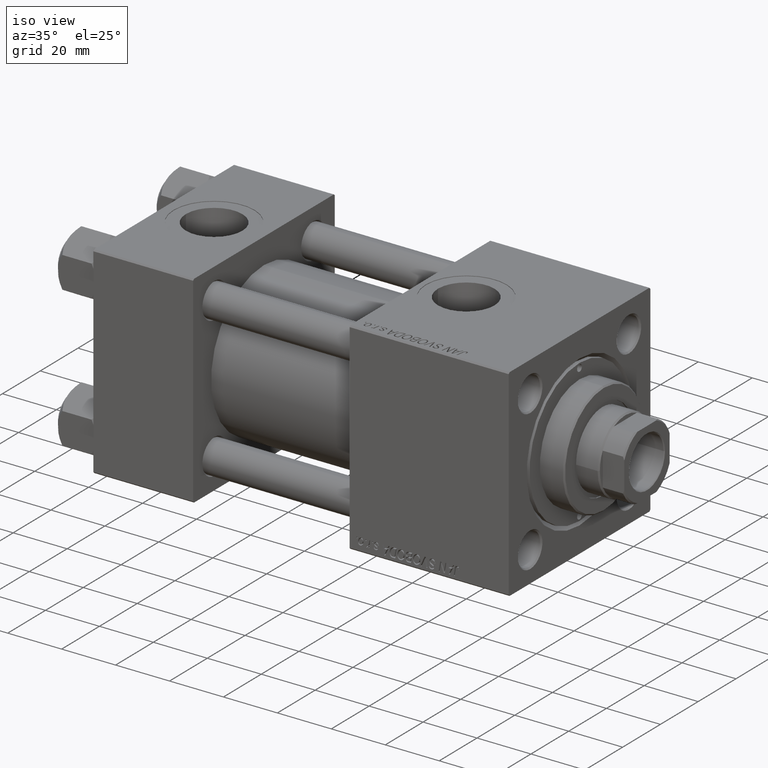
[diagram: clean part render]
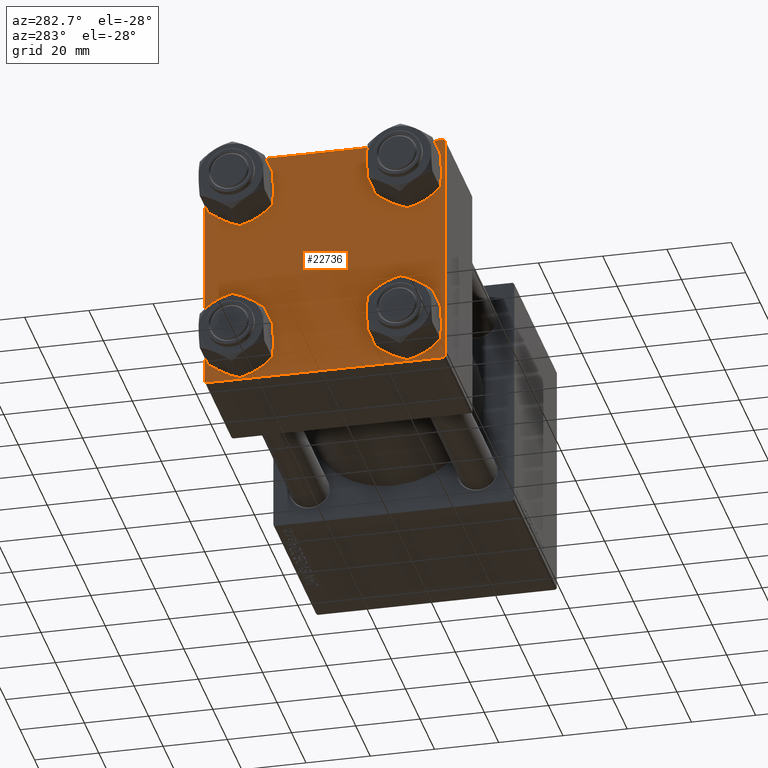
[diagram: tour spotlight — one face highlighted and labeled with its STEP entity id]
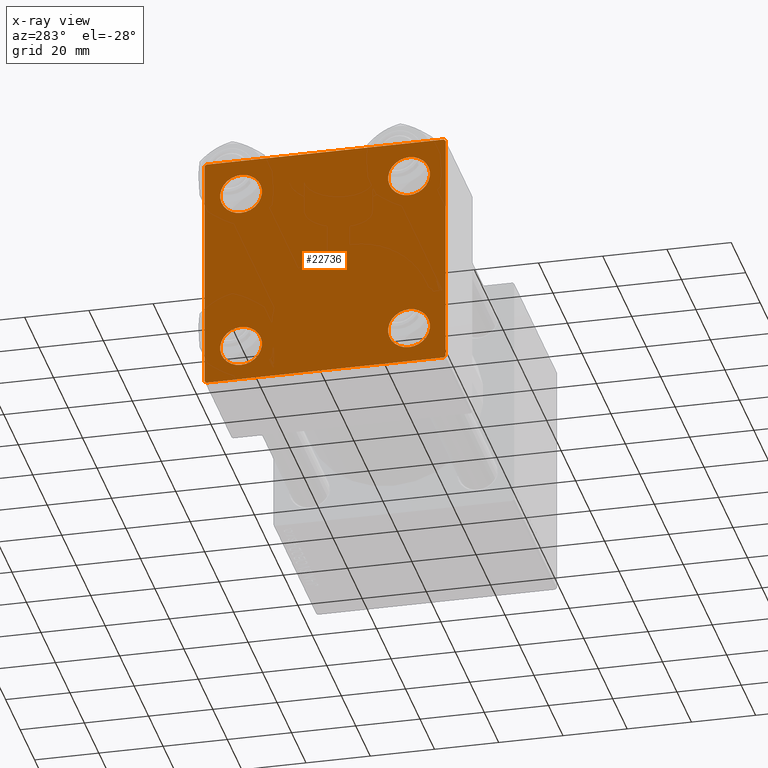
[diagram: x-ray of the same camera — body ghosted, this tour face saturated]
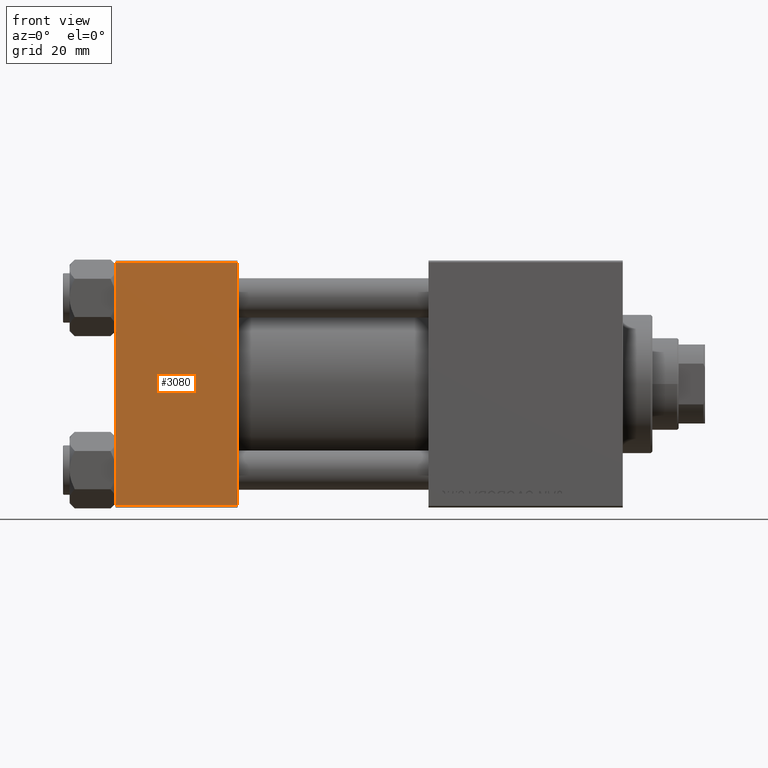
[diagram: tour spotlight — one face highlighted and labeled with its STEP entity id]
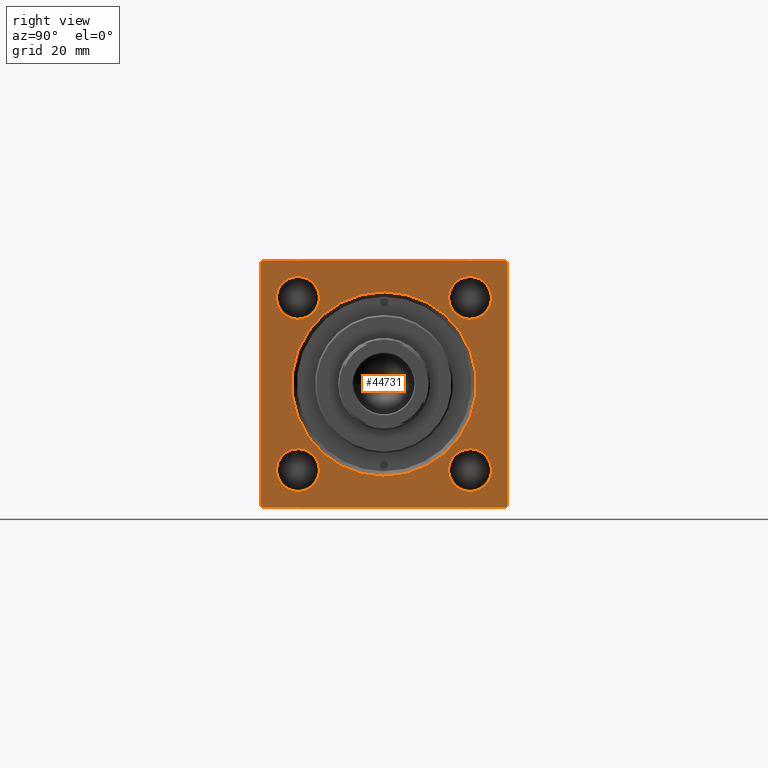
[diagram: tour spotlight — one face highlighted and labeled with its STEP entity id]
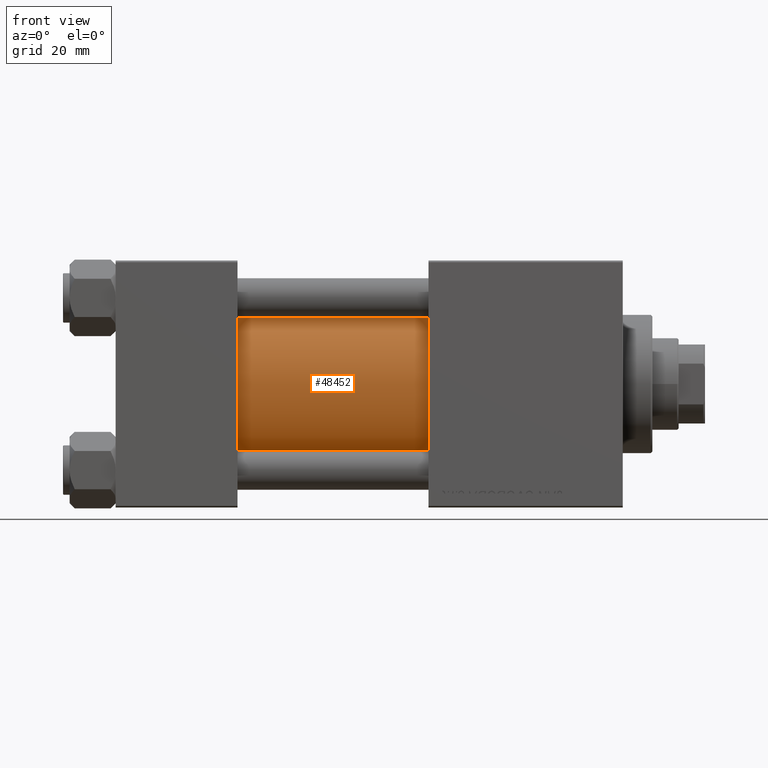
[diagram: tour spotlight — one face highlighted and labeled with its STEP entity id]
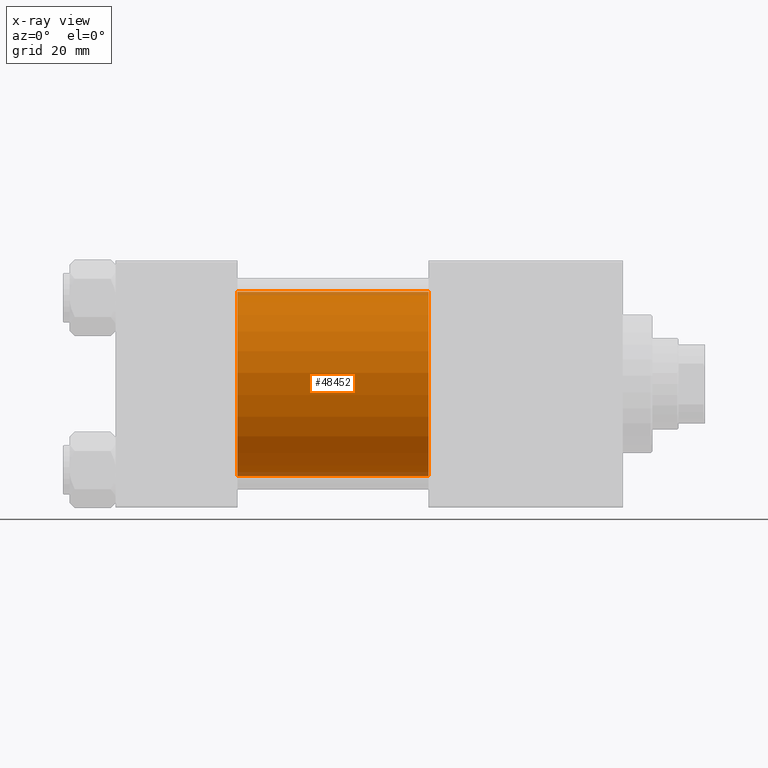
[diagram: x-ray of the same camera — body ghosted, this tour face saturated]
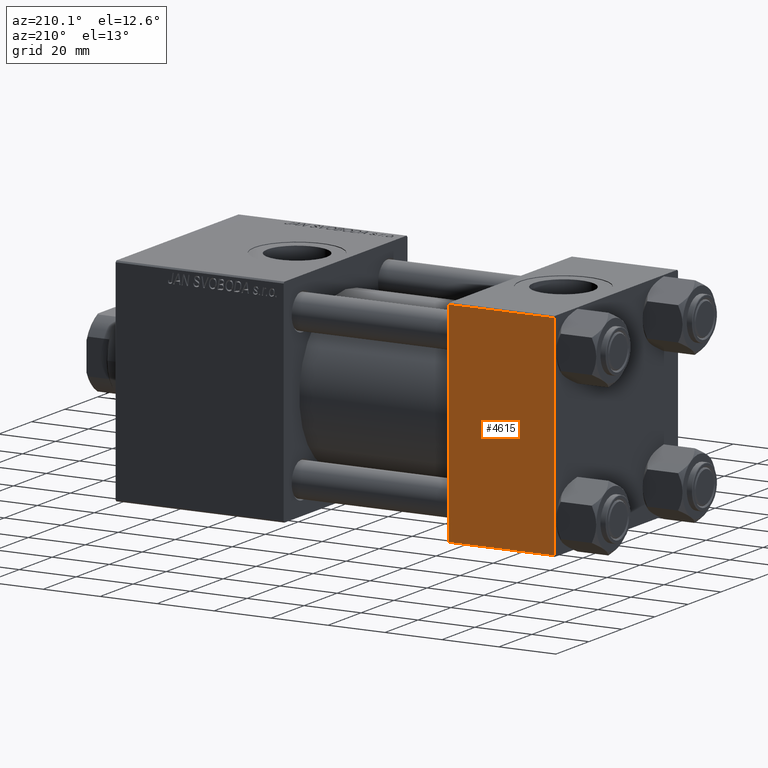
[diagram: tour spotlight — one face highlighted and labeled with its STEP entity id]
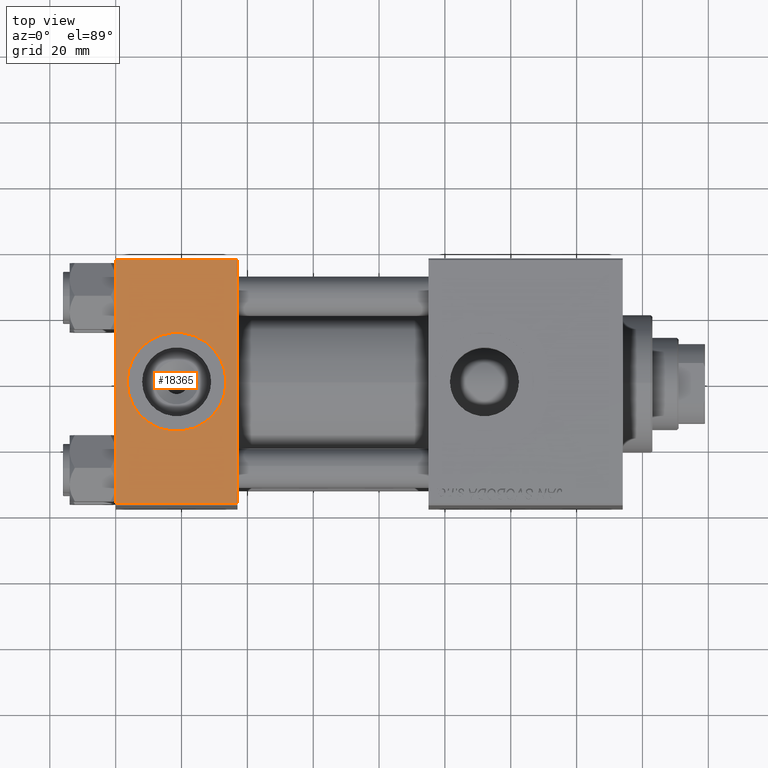
[diagram: tour spotlight — one face highlighted and labeled with its STEP entity id]
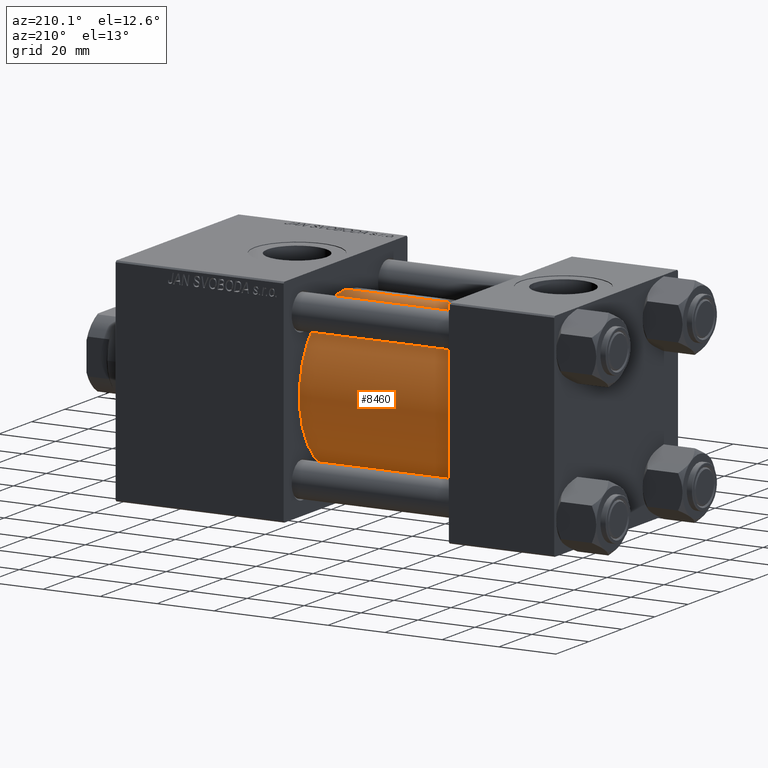
[diagram: tour spotlight — one face highlighted and labeled with its STEP entity id]
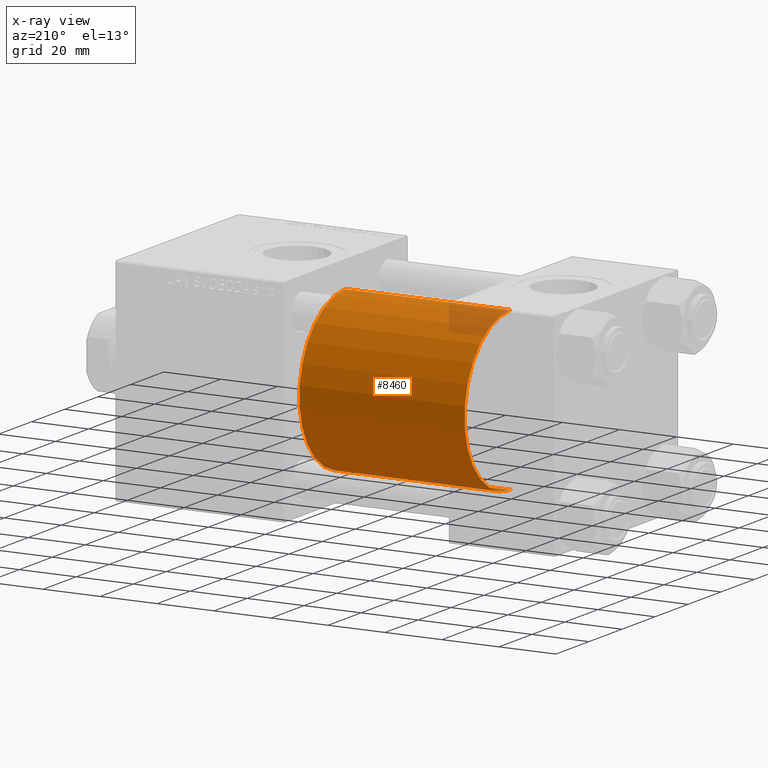
[diagram: x-ray of the same camera — body ghosted, this tour face saturated]
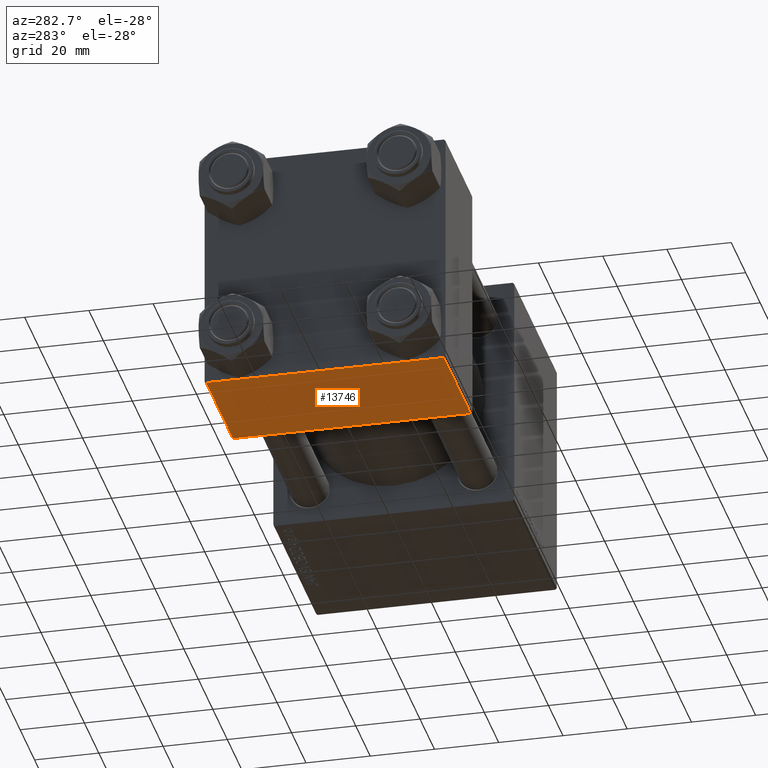
[diagram: tour spotlight — one face highlighted and labeled with its STEP entity id]
A machine part: a face-by-face anatomy tour. The part has 1154 B-rep faces; the first image is the clean iso view, then the 8 largest visible faces are spotlighted one at a time (largest first), each with its STEP entity span.

Face 1 — auxiliary view, entity #22736. An x-ray twin of the same camera follows (body ghosted, this face saturated) — the face is partly hidden behind the body. In plain terms, the highlighted planar face has unit normal (-1, 0, 0).
Definition (entity closure, byte-faithful):
#108 = VERTEX_POINT ( 'NONE', #187 ) ;
#187 = CARTESIAN_POINT ( 'NONE',  ( 0.000000000000000000, -37.00000000000000711, 37.49999999999999289 ) ) ;
#282 = CARTESIAN_POINT ( 'NONE',  ( 0.000000000000000000, 37.49999999999999289, 37.50000000000000000 ) ) ;
#373 = ORIENTED_EDGE ( 'NONE', *, *, #13104, .T. ) ;
#453 = VERTEX_POINT ( 'NONE', #30478 ) ;
#852 = CARTESIAN_POINT ( 'NONE',  ( 0.000000000000000000, 36.99999999999999289, 37.50000000000000000 ) ) ;
#1145 = EDGE_CURVE ( 'NONE', #4337, #30377, #42546, .T. ) ;
#1372 = CARTESIAN_POINT ( 'NONE',  ( 0.000000000000000000, 26.14999999999999858, 32.65000000000002700 ) ) ;
#1682 = ORIENTED_EDGE ( 'NONE', *, *, #7544, .T. ) ;
#1937 = CARTESIAN_POINT ( 'NONE',  ( -0.000000000000000000, -37.25000000000000000, 37.25000000000000000 ) ) ;
#1982 = CARTESIAN_POINT ( 'NONE',  ( 0.000000000000000000, 37.49999999999999289, -37.50000000000000000 ) ) ;
#3220 = VERTEX_POINT ( 'NONE', #21809 ) ;
#3359 = CARTESIAN_POINT ( 'NONE',  ( 0.000000000000000000, 37.49999999999999289, -36.99999999999998579 ) ) ;
#3478 = CIRCLE ( 'NONE', #39244, 6.500000000000023093 ) ;
#3584 = FACE_BOUND ( 'NONE', #45500, .T. ) ;
#3882 = EDGE_CURVE ( 'NONE', #21961, #43569, #17248, .T. ) ;
#4337 = VERTEX_POINT ( 'NONE', #23929 ) ;
#4839 = DIRECTION ( 'NONE',  ( 0.000000000000000000, 9.251858538542971581E-17, -1.000000000000000000 ) ) ;
#4964 = AXIS2_PLACEMENT_3D ( 'NONE', #30027, #18820, #22885 ) ;
#5441 = DIRECTION ( 'NONE',  ( 0.000000000000000000, -1.000000000000000000, -9.251858538542971581E-17 ) ) ;
#5763 = LINE ( 'NONE', #1937, #32898 ) ;
#5916 = AXIS2_PLACEMENT_3D ( 'NONE', #27687, #19302, #11648 ) ;
#6670 = AXIS2_PLACEMENT_3D ( 'NONE', #12268, #7705, #42590 ) ;
#7544 = EDGE_CURVE ( 'NONE', #4337, #108, #5763, .T. ) ;
#7705 = DIRECTION ( 'NONE',  ( 1.000000000000000000, -0.000000000000000000, 0.000000000000000000 ) ) ;
#7938 = ORIENTED_EDGE ( 'NONE', *, *, #10019, .T. ) ;
#7977 = CARTESIAN_POINT ( 'NONE',  ( 0.000000000000000000, -37.50000000000000000, -37.00000000000003553 ) ) ;
#8557 = DIRECTION ( 'NONE',  ( 1.000000000000000000, -0.000000000000000000, 0.000000000000000000 ) ) ;
#8770 = CARTESIAN_POINT ( 'NONE',  ( 0.000000000000000000, 26.14999999999999858, -26.15000000000000213 ) ) ;
#9043 = EDGE_CURVE ( 'NONE', #25455, #3220, #36871, .T. ) ;
#9081 = CARTESIAN_POINT ( 'NONE',  ( 0.000000000000000000, 37.24999999999999289, 37.24999999999999289 ) ) ;
#9435 = LINE ( 'NONE', #47855, #41634 ) ;
#10019 = EDGE_CURVE ( 'NONE', #453, #24376, #11372, .T. ) ;
#10395 = DIRECTION ( 'NONE',  ( 1.000000000000000000, -0.000000000000000000, 0.000000000000000000 ) ) ;
#10710 = CARTESIAN_POINT ( 'NONE',  ( 0.000000000000000000, -26.14999999999999147, 32.65000000000003411 ) ) ;
#10988 = PLANE ( 'NONE',  #44996 ) ;
#11372 = CIRCLE ( 'NONE', #12171, 6.500000000000023093 ) ;
#11648 = DIRECTION ( 'NONE',  ( 0.000000000000000000, 0.000000000000000000, 1.000000000000000000 ) ) ;
#12134 = DIRECTION ( 'NONE',  ( 0.000000000000000000, 0.000000000000000000, 1.000000000000000000 ) ) ;
#12171 = AXIS2_PLACEMENT_3D ( 'NONE', #36624, #10395, #21860 ) ;
#12268 = CARTESIAN_POINT ( 'NONE',  ( 0.000000000000000000, 26.14999999999999858, -26.15000000000000213 ) ) ;
#12629 = CARTESIAN_POINT ( 'NONE',  ( 0.000000000000000000, -26.14999999999999147, -26.15000000000000924 ) ) ;
#12696 = ORIENTED_EDGE ( 'NONE', *, *, #19340, .T. ) ;
#12842 = DIRECTION ( 'NONE',  ( 0.000000000000000000, 0.000000000000000000, 1.000000000000000000 ) ) ;
#13000 = DIRECTION ( 'NONE',  ( 0.000000000000000000, 0.000000000000000000, -1.000000000000000000 ) ) ;
#13104 = EDGE_CURVE ( 'NONE', #38133, #45361, #43962, .T. ) ;
#13563 = VECTOR ( 'NONE', #5441, 1000.000000000000000 ) ;
#13569 = DIRECTION ( 'NONE',  ( 1.000000000000000000, -0.000000000000000000, 0.000000000000000000 ) ) ;
#13580 = EDGE_CURVE ( 'NONE', #17071, #16070, #49685, .T. ) ;
#13696 = DIRECTION ( 'NONE',  ( 0.000000000000000000, -1.000000000000000000, -9.251858538542972814E-17 ) ) ;
#14009 = CIRCLE ( 'NONE', #49758, 6.500000000000015987 ) ;
#14038 = EDGE_CURVE ( 'NONE', #3220, #30377, #18127, .T. ) ;
#14819 = CIRCLE ( 'NONE', #16454, 6.500000000000015987 ) ;
#15705 = EDGE_CURVE ( 'NONE', #34732, #25455, #9435, .T. ) ;
#16070 = VERTEX_POINT ( 'NONE', #38310 ) ;
#16183 = EDGE_CURVE ( 'NONE', #28997, #26846, #3478, .T. ) ;
#16454 = AXIS2_PLACEMENT_3D ( 'NONE', #8770, #48457, #12842 ) ;
#16633 = AXIS2_PLACEMENT_3D ( 'NONE', #38569, #33995, #23048 ) ;
#16805 = EDGE_CURVE ( 'NONE', #26846, #28997, #45735, .T. ) ;
#17071 = VERTEX_POINT ( 'NONE', #23053 ) ;
#17248 = CIRCLE ( 'NONE', #6670, 6.500000000000015987 ) ;
#17484 = ORIENTED_EDGE ( 'NONE', *, *, #14038, .T. ) ;
#17655 = DIRECTION ( 'NONE',  ( 0.000000000000000000, 0.000000000000000000, 1.000000000000000000 ) ) ;
#18127 = LINE ( 'NONE', #49159, #22892 ) ;
#18628 = FACE_BOUND ( 'NONE', #28850, .T. ) ;
#18820 = DIRECTION ( 'NONE',  ( 1.000000000000000000, -0.000000000000000000, 0.000000000000000000 ) ) ;
#19302 = DIRECTION ( 'NONE',  ( 1.000000000000000000, -0.000000000000000000, 0.000000000000000000 ) ) ;
#19340 = EDGE_CURVE ( 'NONE', #16070, #17071, #14009, .T. ) ;
#19533 = ORIENTED_EDGE ( 'NONE', *, *, #27225, .T. ) ;
#19589 = VECTOR ( 'NONE', #4839, 1000.000000000000000 ) ;
#20211 = ORIENTED_EDGE ( 'NONE', *, *, #1145, .F. ) ;
#20986 = LINE ( 'NONE', #47679, #13563 ) ;
#21088 = VECTOR ( 'NONE', #13696, 1000.000000000000000 ) ;
#21225 = CARTESIAN_POINT ( 'NONE',  ( 0.000000000000000000, 26.14999999999999858, 26.15000000000000213 ) ) ;
#21809 = CARTESIAN_POINT ( 'NONE',  ( 0.000000000000000000, -37.00000000000002132, -37.50000000000000711 ) ) ;
#21860 = DIRECTION ( 'NONE',  ( 0.000000000000000000, 0.000000000000000000, 1.000000000000000000 ) ) ;
#21961 = VERTEX_POINT ( 'NONE', #29831 ) ;
#22736 = ADVANCED_FACE ( 'NONE', ( #37713, #18628, #26772, #3584, #33900 ), #10988, .T. ) ;
#22885 = DIRECTION ( 'NONE',  ( 0.000000000000000000, 0.000000000000000000, 1.000000000000000000 ) ) ;
#22892 = VECTOR ( 'NONE', #36970, 1000.000000000000000 ) ;
#23048 = DIRECTION ( 'NONE',  ( 0.000000000000000000, 0.000000000000000000, 1.000000000000000000 ) ) ;
#23053 = CARTESIAN_POINT ( 'NONE',  ( 0.000000000000000000, -26.14999999999999147, -32.65000000000002700 ) ) ;
#23838 = ORIENTED_EDGE ( 'NONE', *, *, #15705, .T. ) ;
#23929 = CARTESIAN_POINT ( 'NONE',  ( 0.000000000000000000, -37.50000000000000711, 36.99999999999999289 ) ) ;
#24376 = VERTEX_POINT ( 'NONE', #10710 ) ;
#25213 = DIRECTION ( 'NONE',  ( -0.000000000000000000, -0.7071067811865474617, -0.7071067811865474617 ) ) ;
#25455 = VERTEX_POINT ( 'NONE', #44534 ) ;
#26392 = CIRCLE ( 'NONE', #16633, 6.500000000000023093 ) ;
#26520 = CARTESIAN_POINT ( 'NONE',  ( 0.000000000000000000, 0.000000000000000000, 0.000000000000000000 ) ) ;
#26772 = FACE_BOUND ( 'NONE', #38268, .T. ) ;
#26846 = VERTEX_POINT ( 'NONE', #47920 ) ;
#27225 = EDGE_CURVE ( 'NONE', #45361, #34732, #39748, .T. ) ;
#27285 = ORIENTED_EDGE ( 'NONE', *, *, #16183, .T. ) ;
#27687 = CARTESIAN_POINT ( 'NONE',  ( 0.000000000000000000, 26.14999999999999858, 26.15000000000000213 ) ) ;
#28850 = EDGE_LOOP ( 'NONE', ( #12696, #36112 ) ) ;
#28997 = VERTEX_POINT ( 'NONE', #1372 ) ;
#29203 = DIRECTION ( 'NONE',  ( 0.000000000000000000, 0.7071067811865474617, -0.7071067811865474617 ) ) ;
#29831 = CARTESIAN_POINT ( 'NONE',  ( 0.000000000000000000, 26.14999999999999858, -19.64999999999998792 ) ) ;
#30027 = CARTESIAN_POINT ( 'NONE',  ( 0.000000000000000000, -26.14999999999999147, -26.15000000000000924 ) ) ;
#30377 = VERTEX_POINT ( 'NONE', #7977 ) ;
#30478 = CARTESIAN_POINT ( 'NONE',  ( 0.000000000000000000, -26.14999999999999147, 19.64999999999999147 ) ) ;
#32898 = VECTOR ( 'NONE', #44469, 1000.000000000000114 ) ;
#33900 = FACE_OUTER_BOUND ( 'NONE', #35186, .T. ) ;
#33995 = DIRECTION ( 'NONE',  ( 1.000000000000000000, -0.000000000000000000, 0.000000000000000000 ) ) ;
#34513 = EDGE_CURVE ( 'NONE', #38133, #108, #20986, .T. ) ;
#34732 = VERTEX_POINT ( 'NONE', #3359 ) ;
#35186 = EDGE_LOOP ( 'NONE', ( #19533, #23838, #45138, #17484, #20211, #1682, #38810, #373 ) ) ;
#36112 = ORIENTED_EDGE ( 'NONE', *, *, #13580, .T. ) ;
#36217 = VECTOR ( 'NONE', #13000, 1000.000000000000000 ) ;
#36245 = ORIENTED_EDGE ( 'NONE', *, *, #16805, .T. ) ;
#36624 = CARTESIAN_POINT ( 'NONE',  ( 0.000000000000000000, -26.14999999999999147, 26.15000000000000924 ) ) ;
#36871 = LINE ( 'NONE', #1982, #21088 ) ;
#36970 = DIRECTION ( 'NONE',  ( 0.000000000000000000, -0.7071067811865524577, 0.7071067811865426878 ) ) ;
#37438 = CARTESIAN_POINT ( 'NONE',  ( 0.000000000000000000, 37.49999999999999289, 37.00000000000000000 ) ) ;
#37713 = FACE_BOUND ( 'NONE', #47543, .T. ) ;
#38133 = VERTEX_POINT ( 'NONE', #852 ) ;
#38268 = EDGE_LOOP ( 'NONE', ( #47603, #47052 ) ) ;
#38310 = CARTESIAN_POINT ( 'NONE',  ( 0.000000000000000000, -26.14999999999999147, -19.64999999999999503 ) ) ;
#38569 = CARTESIAN_POINT ( 'NONE',  ( 0.000000000000000000, -26.14999999999999147, 26.15000000000000924 ) ) ;
#38810 = ORIENTED_EDGE ( 'NONE', *, *, #34513, .F. ) ;
#39097 = EDGE_CURVE ( 'NONE', #43569, #21961, #14819, .T. ) ;
#39244 = AXIS2_PLACEMENT_3D ( 'NONE', #21225, #13569, #17655 ) ;
#39748 = LINE ( 'NONE', #282, #36217 ) ;
#41634 = VECTOR ( 'NONE', #25213, 1000.000000000000114 ) ;
#42546 = LINE ( 'NONE', #43287, #19589 ) ;
#42566 = ORIENTED_EDGE ( 'NONE', *, *, #44668, .T. ) ;
#42590 = DIRECTION ( 'NONE',  ( 0.000000000000000000, 0.000000000000000000, 1.000000000000000000 ) ) ;
#43287 = CARTESIAN_POINT ( 'NONE',  ( 0.000000000000000000, -37.50000000000000711, 37.49999999999999289 ) ) ;
#43569 = VERTEX_POINT ( 'NONE', #47733 ) ;
#43962 = LINE ( 'NONE', #9081, #48039 ) ;
#44469 = DIRECTION ( 'NONE',  ( -0.000000000000000000, 0.7071067811865474617, 0.7071067811865474617 ) ) ;
#44534 = CARTESIAN_POINT ( 'NONE',  ( 0.000000000000000000, 36.99999999999997868, -37.50000000000000000 ) ) ;
#44668 = EDGE_CURVE ( 'NONE', #24376, #453, #26392, .T. ) ;
#44996 = AXIS2_PLACEMENT_3D ( 'NONE', #26520, #49911, #46097 ) ;
#45138 = ORIENTED_EDGE ( 'NONE', *, *, #9043, .T. ) ;
#45361 = VERTEX_POINT ( 'NONE', #37438 ) ;
#45500 = EDGE_LOOP ( 'NONE', ( #27285, #36245 ) ) ;
#45735 = CIRCLE ( 'NONE', #5916, 6.500000000000023093 ) ;
#46097 = DIRECTION ( 'NONE',  ( -0.000000000000000000, 0.000000000000000000, 1.000000000000000000 ) ) ;
#47052 = ORIENTED_EDGE ( 'NONE', *, *, #39097, .T. ) ;
#47543 = EDGE_LOOP ( 'NONE', ( #42566, #7938 ) ) ;
#47603 = ORIENTED_EDGE ( 'NONE', *, *, #3882, .T. ) ;
#47679 = CARTESIAN_POINT ( 'NONE',  ( 0.000000000000000000, 37.49999999999999289, 37.50000000000000000 ) ) ;
#47733 = CARTESIAN_POINT ( 'NONE',  ( 0.000000000000000000, 26.14999999999999858, -32.65000000000001990 ) ) ;
#47855 = CARTESIAN_POINT ( 'NONE',  ( 0.000000000000000000, 37.24999999999998579, -37.24999999999998579 ) ) ;
#47920 = CARTESIAN_POINT ( 'NONE',  ( 0.000000000000000000, 26.14999999999999858, 19.64999999999998437 ) ) ;
#48039 = VECTOR ( 'NONE', #29203, 1000.000000000000114 ) ;
#48457 = DIRECTION ( 'NONE',  ( 1.000000000000000000, -0.000000000000000000, 0.000000000000000000 ) ) ;
#49159 = CARTESIAN_POINT ( 'NONE',  ( 0.000000000000000000, -37.24999999999975842, -37.25000000000027001 ) ) ;
#49685 = CIRCLE ( 'NONE', #4964, 6.500000000000015987 ) ;
#49758 = AXIS2_PLACEMENT_3D ( 'NONE', #12629, #8557, #12134 ) ;
#49911 = DIRECTION ( 'NONE',  ( -1.000000000000000000, 0.000000000000000000, -0.000000000000000000 ) ) ;

Face 2 — front view, entity #3080. In plain terms, the highlighted planar face has unit normal (0, 1, 0).
Definition (entity closure, byte-faithful):
#1145 = EDGE_CURVE ( 'NONE', #4337, #30377, #42546, .T. ) ;
#2017 = EDGE_CURVE ( 'NONE', #30992, #4337, #31105, .T. ) ;
#2560 = AXIS2_PLACEMENT_3D ( 'NONE', #11973, #30324, #11459 ) ;
#3080 = ADVANCED_FACE ( 'NONE', ( #7148 ), #22676, .F. ) ;
#4337 = VERTEX_POINT ( 'NONE', #23929 ) ;
#4839 = DIRECTION ( 'NONE',  ( 0.000000000000000000, 9.251858538542971581E-17, -1.000000000000000000 ) ) ;
#6917 = DIRECTION ( 'NONE',  ( 1.000000000000000000, 0.000000000000000000, 0.000000000000000000 ) ) ;
#7148 = FACE_OUTER_BOUND ( 'NONE', #45817, .T. ) ;
#7977 = CARTESIAN_POINT ( 'NONE',  ( 0.000000000000000000, -37.50000000000000000, -37.00000000000003553 ) ) ;
#9160 = CARTESIAN_POINT ( 'NONE',  ( 37.00000000000000000, -37.50000000000000711, 36.99999999999999289 ) ) ;
#9351 = VERTEX_POINT ( 'NONE', #40124 ) ;
#11459 = DIRECTION ( 'NONE',  ( 0.000000000000000000, -9.251858538542971581E-17, 1.000000000000000000 ) ) ;
#11745 = CARTESIAN_POINT ( 'NONE',  ( 37.00000000000000000, -37.50000000000000711, 36.99999999999999289 ) ) ;
#11973 = CARTESIAN_POINT ( 'NONE',  ( 37.00000000000000000, -37.50000000000000711, 37.49999999999999289 ) ) ;
#14090 = EDGE_CURVE ( 'NONE', #30377, #9351, #14801, .T. ) ;
#14801 = LINE ( 'NONE', #45850, #27812 ) ;
#17699 = CARTESIAN_POINT ( 'NONE',  ( 37.00000000000000000, -37.50000000000000711, 37.49999999999999289 ) ) ;
#19589 = VECTOR ( 'NONE', #4839, 1000.000000000000000 ) ;
#22676 = PLANE ( 'NONE',  #2560 ) ;
#23217 = VECTOR ( 'NONE', #30414, 1000.000000000000000 ) ;
#23689 = VECTOR ( 'NONE', #42809, 1000.000000000000000 ) ;
#23929 = CARTESIAN_POINT ( 'NONE',  ( 0.000000000000000000, -37.50000000000000711, 36.99999999999999289 ) ) ;
#26335 = LINE ( 'NONE', #17699, #23217 ) ;
#27812 = VECTOR ( 'NONE', #6917, 1000.000000000000000 ) ;
#30324 = DIRECTION ( 'NONE',  ( -0.000000000000000000, 1.000000000000000000, 9.251858538542971581E-17 ) ) ;
#30377 = VERTEX_POINT ( 'NONE', #7977 ) ;
#30414 = DIRECTION ( 'NONE',  ( 0.000000000000000000, 9.251858538542971581E-17, -1.000000000000000000 ) ) ;
#30992 = VERTEX_POINT ( 'NONE', #9160 ) ;
#31105 = LINE ( 'NONE', #11745, #23689 ) ;
#35050 = ORIENTED_EDGE ( 'NONE', *, *, #14090, .T. ) ;
#38649 = ORIENTED_EDGE ( 'NONE', *, *, #2017, .T. ) ;
#40124 = CARTESIAN_POINT ( 'NONE',  ( 37.00000000000000000, -37.50000000000000000, -37.00000000000003553 ) ) ;
#40304 = ORIENTED_EDGE ( 'NONE', *, *, #47362, .F. ) ;
#42546 = LINE ( 'NONE', #43287, #19589 ) ;
#42809 = DIRECTION ( 'NONE',  ( -1.000000000000000000, 0.000000000000000000, 0.000000000000000000 ) ) ;
#43287 = CARTESIAN_POINT ( 'NONE',  ( 0.000000000000000000, -37.50000000000000711, 37.49999999999999289 ) ) ;
#45817 = EDGE_LOOP ( 'NONE', ( #48661, #35050, #40304, #38649 ) ) ;
#45850 = CARTESIAN_POINT ( 'NONE',  ( 37.00000000000000000, -37.50000000000000000, -37.00000000000003553 ) ) ;
#47362 = EDGE_CURVE ( 'NONE', #30992, #9351, #26335, .T. ) ;
#48661 = ORIENTED_EDGE ( 'NONE', *, *, #1145, .T. ) ;

Face 3 — right view, entity #44731. In plain terms, the highlighted planar face has unit normal (-1, 0, 0).
Definition (entity closure, byte-faithful):
#192 = CARTESIAN_POINT ( 'NONE',  ( 154.0000000000000000, 26.14999999999999858, -26.15000000000000213 ) ) ;
#326 = CARTESIAN_POINT ( 'NONE',  ( 154.0000000000000000, -37.50000000000000000, 37.49999999999997868 ) ) ;
#457 = EDGE_CURVE ( 'NONE', #30812, #48309, #48011, .T. ) ;
#459 = CARTESIAN_POINT ( 'NONE',  ( 154.0000000000000000, -26.15000000000000213, -32.64999999999998437 ) ) ;
#915 = VECTOR ( 'NONE', #25445, 1000.000000000000000 ) ;
#1102 = DIRECTION ( 'NONE',  ( -1.000000000000000000, -0.000000000000000000, 0.000000000000000000 ) ) ;
#1429 = LINE ( 'NONE', #14149, #24073 ) ;
#1638 = ORIENTED_EDGE ( 'NONE', *, *, #28721, .F. ) ;
#1735 = EDGE_CURVE ( 'NONE', #14995, #7506, #14871, .T. ) ;
#1762 = CARTESIAN_POINT ( 'NONE',  ( 154.0000000000000000, 37.50000000000000000, 37.49999999999999289 ) ) ;
#1797 = AXIS2_PLACEMENT_3D ( 'NONE', #25546, #2870, #34438 ) ;
#2306 = EDGE_CURVE ( 'NONE', #23419, #19161, #36555, .T. ) ;
#2337 = CARTESIAN_POINT ( 'NONE',  ( 154.0000000000000000, 37.00000000000000000, 37.49999999999999289 ) ) ;
#2622 = AXIS2_PLACEMENT_3D ( 'NONE', #31325, #11972, #42773 ) ;
#2735 = CARTESIAN_POINT ( 'NONE',  ( 154.0000000000000000, 0.000000000000000000, 0.000000000000000000 ) ) ;
#2870 = DIRECTION ( 'NONE',  ( -1.000000000000000000, -0.000000000000000000, 0.000000000000000000 ) ) ;
#3356 = ORIENTED_EDGE ( 'NONE', *, *, #6612, .T. ) ;
#3816 = EDGE_CURVE ( 'NONE', #9235, #43458, #40839, .T. ) ;
#3901 = LINE ( 'NONE', #7716, #31483 ) ;
#4870 = CARTESIAN_POINT ( 'NONE',  ( 154.0000000000000000, -26.15000000000000213, -26.15000000000000213 ) ) ;
#4883 = ORIENTED_EDGE ( 'NONE', *, *, #1735, .T. ) ;
#4929 = PLANE ( 'NONE',  #8486 ) ;
#4963 = CARTESIAN_POINT ( 'NONE',  ( 154.0000000000000000, -36.99999999999997158, 37.49999999999997868 ) ) ;
#6290 = ORIENTED_EDGE ( 'NONE', *, *, #457, .T. ) ;
#6345 = DIRECTION ( 'NONE',  ( -1.000000000000000000, -0.000000000000000000, 0.000000000000000000 ) ) ;
#6612 = EDGE_CURVE ( 'NONE', #48309, #30812, #20614, .T. ) ;
#7259 = EDGE_LOOP ( 'NONE', ( #11452, #13838 ) ) ;
#7289 = CARTESIAN_POINT ( 'NONE',  ( 154.0000000000000000, 0.000000000000000000, 0.000000000000000000 ) ) ;
#7506 = VERTEX_POINT ( 'NONE', #35822 ) ;
#7716 = CARTESIAN_POINT ( 'NONE',  ( 154.0000000000000000, 37.50000000000000000, 37.49999999999999289 ) ) ;
#8451 = AXIS2_PLACEMENT_3D ( 'NONE', #43752, #12448, #16773 ) ;
#8486 = AXIS2_PLACEMENT_3D ( 'NONE', #28368, #1102, #16906 ) ;
#9210 = DIRECTION ( 'NONE',  ( 0.000000000000000000, 0.000000000000000000, 1.000000000000000000 ) ) ;
#9235 = VERTEX_POINT ( 'NONE', #27934 ) ;
#9293 = CIRCLE ( 'NONE', #37753, 6.499999999999974243 ) ;
#9439 = EDGE_LOOP ( 'NONE', ( #50397, #44672, #1638, #4883, #28232, #36062, #46534, #12059 ) ) ;
#9740 = EDGE_LOOP ( 'NONE', ( #24574, #37433 ) ) ;
#10825 = AXIS2_PLACEMENT_3D ( 'NONE', #2735, #33551, #37631 ) ;
#11060 = CARTESIAN_POINT ( 'NONE',  ( 154.0000000000000000, 37.50000000000000000, -36.99999999999999289 ) ) ;
#11074 = VERTEX_POINT ( 'NONE', #14795 ) ;
#11304 = CIRCLE ( 'NONE', #36484, 6.499999999999974243 ) ;
#11452 = ORIENTED_EDGE ( 'NONE', *, *, #45175, .T. ) ;
#11972 = DIRECTION ( 'NONE',  ( -1.000000000000000000, -0.000000000000000000, 0.000000000000000000 ) ) ;
#12059 = ORIENTED_EDGE ( 'NONE', *, *, #2306, .T. ) ;
#12232 = VECTOR ( 'NONE', #50302, 1000.000000000000000 ) ;
#12432 = EDGE_CURVE ( 'NONE', #35085, #27759, #42682, .T. ) ;
#12448 = DIRECTION ( 'NONE',  ( -1.000000000000000000, -0.000000000000000000, 0.000000000000000000 ) ) ;
#12573 = FACE_OUTER_BOUND ( 'NONE', #9439, .T. ) ;
#12822 = FACE_BOUND ( 'NONE', #7259, .T. ) ;
#13655 = EDGE_CURVE ( 'NONE', #24784, #35227, #43992, .T. ) ;
#13838 = ORIENTED_EDGE ( 'NONE', *, *, #3816, .T. ) ;
#14149 = CARTESIAN_POINT ( 'NONE',  ( 154.0000000000000000, 37.50000000000000000, -37.50000000000000000 ) ) ;
#14274 = EDGE_CURVE ( 'NONE', #40928, #23419, #48837, .T. ) ;
#14795 = CARTESIAN_POINT ( 'NONE',  ( 154.0000000000000000, 37.50000000000000000, 36.99999999999999289 ) ) ;
#14871 = LINE ( 'NONE', #11060, #35064 ) ;
#14995 = VERTEX_POINT ( 'NONE', #25203 ) ;
#15236 = EDGE_LOOP ( 'NONE', ( #3356, #6290 ) ) ;
#15870 = DIRECTION ( 'NONE',  ( 0.000000000000000000, -9.251858538542972814E-17, -1.000000000000000000 ) ) ;
#16141 = FACE_BOUND ( 'NONE', #9740, .T. ) ;
#16773 = DIRECTION ( 'NONE',  ( 0.000000000000000000, 0.000000000000000000, 1.000000000000000000 ) ) ;
#16906 = DIRECTION ( 'NONE',  ( 0.000000000000000000, 0.000000000000000000, 1.000000000000000000 ) ) ;
#16938 = EDGE_CURVE ( 'NONE', #11074, #40928, #24340, .T. ) ;
#16962 = CARTESIAN_POINT ( 'NONE',  ( 154.0000000000000000, -37.50000000000000000, 36.99999999999995026 ) ) ;
#18868 = AXIS2_PLACEMENT_3D ( 'NONE', #192, #43221, #38668 ) ;
#19014 = DIRECTION ( 'NONE',  ( 0.000000000000000000, 0.000000000000000000, 1.000000000000000000 ) ) ;
#19161 = VERTEX_POINT ( 'NONE', #43001 ) ;
#19191 = AXIS2_PLACEMENT_3D ( 'NONE', #40036, #48154, #36222 ) ;
#20103 = EDGE_CURVE ( 'NONE', #35808, #42986, #24578, .T. ) ;
#20416 = DIRECTION ( 'NONE',  ( -1.000000000000000000, -0.000000000000000000, 0.000000000000000000 ) ) ;
#20614 = CIRCLE ( 'NONE', #10825, 27.99999999999999645 ) ;
#20799 = DIRECTION ( 'NONE',  ( -0.000000000000000000, -0.7071067811865474617, -0.7071067811865474617 ) ) ;
#21298 = CARTESIAN_POINT ( 'NONE',  ( 154.0000000000000000, 37.00000000000000000, 37.49999999999999289 ) ) ;
#21391 = CARTESIAN_POINT ( 'NONE',  ( 154.0000000000000000, 26.14999999999999858, 26.15000000000000213 ) ) ;
#22108 = CARTESIAN_POINT ( 'NONE',  ( 154.0000000000000000, -37.50000000000000711, -37.00000000000000711 ) ) ;
#22832 = CARTESIAN_POINT ( 'NONE',  ( 154.0000000000000000, -36.99999999999998579, -37.50000000000000000 ) ) ;
#23333 = CIRCLE ( 'NONE', #32289, 6.500000000000008882 ) ;
#23419 = VERTEX_POINT ( 'NONE', #4963 ) ;
#24073 = VECTOR ( 'NONE', #33004, 1000.000000000000000 ) ;
#24340 = LINE ( 'NONE', #21298, #46522 ) ;
#24476 = DIRECTION ( 'NONE',  ( -1.000000000000000000, -0.000000000000000000, 0.000000000000000000 ) ) ;
#24574 = ORIENTED_EDGE ( 'NONE', *, *, #47636, .T. ) ;
#24578 = CIRCLE ( 'NONE', #2622, 6.500000000000002665 ) ;
#24784 = VERTEX_POINT ( 'NONE', #28951 ) ;
#25203 = CARTESIAN_POINT ( 'NONE',  ( 154.0000000000000000, 37.00000000000000000, -37.50000000000000000 ) ) ;
#25316 = VECTOR ( 'NONE', #20799, 1000.000000000000114 ) ;
#25445 = DIRECTION ( 'NONE',  ( 0.000000000000000000, -1.000000000000000000, -1.850371707708594316E-16 ) ) ;
#25546 = CARTESIAN_POINT ( 'NONE',  ( 154.0000000000000000, -26.15000000000000213, -26.15000000000000213 ) ) ;
#26085 = CARTESIAN_POINT ( 'NONE',  ( 154.0000000000000000, 0.000000000000000000, -27.99999999999999645 ) ) ;
#26440 = CARTESIAN_POINT ( 'NONE',  ( 154.0000000000000000, 26.14999999999999858, -19.65000000000002345 ) ) ;
#26579 = ORIENTED_EDGE ( 'NONE', *, *, #44177, .T. ) ;
#26597 = DIRECTION ( 'NONE',  ( -0.000000000000000000, 0.7071067811865425767, 0.7071067811865525687 ) ) ;
#27186 = CARTESIAN_POINT ( 'NONE',  ( 154.0000000000000000, -36.99999999999998579, -37.50000000000000000 ) ) ;
#27419 = ORIENTED_EDGE ( 'NONE', *, *, #36868, .T. ) ;
#27759 = VERTEX_POINT ( 'NONE', #27186 ) ;
#27934 = CARTESIAN_POINT ( 'NONE',  ( 154.0000000000000000, -26.15000000000000213, -19.65000000000002345 ) ) ;
#28232 = ORIENTED_EDGE ( 'NONE', *, *, #49541, .F. ) ;
#28368 = CARTESIAN_POINT ( 'NONE',  ( 154.0000000000000000, 0.000000000000000000, 0.000000000000000000 ) ) ;
#28721 = EDGE_CURVE ( 'NONE', #14995, #27759, #1429, .T. ) ;
#28951 = CARTESIAN_POINT ( 'NONE',  ( 154.0000000000000000, 26.14999999999999858, -32.64999999999998437 ) ) ;
#29106 = ORIENTED_EDGE ( 'NONE', *, *, #30888, .T. ) ;
#29477 = ORIENTED_EDGE ( 'NONE', *, *, #13655, .T. ) ;
#30812 = VERTEX_POINT ( 'NONE', #35159 ) ;
#30888 = EDGE_CURVE ( 'NONE', #44563, #42461, #23333, .T. ) ;
#31325 = CARTESIAN_POINT ( 'NONE',  ( 154.0000000000000000, -26.14999999999999147, 26.14999999999999503 ) ) ;
#31483 = VECTOR ( 'NONE', #39030, 1000.000000000000000 ) ;
#32289 = AXIS2_PLACEMENT_3D ( 'NONE', #21391, #6345, #40224 ) ;
#32446 = EDGE_CURVE ( 'NONE', #19161, #35085, #35232, .T. ) ;
#33004 = DIRECTION ( 'NONE',  ( 0.000000000000000000, -1.000000000000000000, 0.000000000000000000 ) ) ;
#33551 = DIRECTION ( 'NONE',  ( -1.000000000000000000, -0.000000000000000000, 0.000000000000000000 ) ) ;
#33815 = VECTOR ( 'NONE', #15870, 1000.000000000000000 ) ;
#34438 = DIRECTION ( 'NONE',  ( 0.000000000000000000, 0.000000000000000000, 1.000000000000000000 ) ) ;
#35064 = VECTOR ( 'NONE', #26597, 999.9999999999998863 ) ;
#35085 = VERTEX_POINT ( 'NONE', #22108 ) ;
#35159 = CARTESIAN_POINT ( 'NONE',  ( 154.0000000000000000, 3.429011037612588881E-15, 27.99999999999999645 ) ) ;
#35227 = VERTEX_POINT ( 'NONE', #26440 ) ;
#35232 = LINE ( 'NONE', #326, #33815 ) ;
#35505 = FACE_BOUND ( 'NONE', #15236, .T. ) ;
#35808 = VERTEX_POINT ( 'NONE', #45829 ) ;
#35822 = CARTESIAN_POINT ( 'NONE',  ( 154.0000000000000000, 37.50000000000000000, -36.99999999999999289 ) ) ;
#36062 = ORIENTED_EDGE ( 'NONE', *, *, #16938, .T. ) ;
#36222 = DIRECTION ( 'NONE',  ( 0.000000000000000000, 0.000000000000000000, 1.000000000000000000 ) ) ;
#36457 = CARTESIAN_POINT ( 'NONE',  ( 154.0000000000000000, 26.14999999999999858, -26.15000000000000213 ) ) ;
#36484 = AXIS2_PLACEMENT_3D ( 'NONE', #36457, #24476, #9210 ) ;
#36553 = CARTESIAN_POINT ( 'NONE',  ( 154.0000000000000000, 26.14999999999999858, 19.64999999999999503 ) ) ;
#36555 = LINE ( 'NONE', #16962, #25316 ) ;
#36868 = EDGE_CURVE ( 'NONE', #35227, #24784, #11304, .T. ) ;
#37433 = ORIENTED_EDGE ( 'NONE', *, *, #20103, .T. ) ;
#37631 = DIRECTION ( 'NONE',  ( 0.000000000000000000, 0.000000000000000000, 1.000000000000000000 ) ) ;
#37753 = AXIS2_PLACEMENT_3D ( 'NONE', #4870, #20416, #47114 ) ;
#38668 = DIRECTION ( 'NONE',  ( 0.000000000000000000, 0.000000000000000000, 1.000000000000000000 ) ) ;
#39030 = DIRECTION ( 'NONE',  ( 0.000000000000000000, 0.000000000000000000, -1.000000000000000000 ) ) ;
#39314 = CARTESIAN_POINT ( 'NONE',  ( 154.0000000000000000, -26.14999999999999147, 19.64999999999999503 ) ) ;
#39873 = DIRECTION ( 'NONE',  ( 0.000000000000000000, -0.7071067811865474617, 0.7071067811865474617 ) ) ;
#40036 = CARTESIAN_POINT ( 'NONE',  ( 154.0000000000000000, -26.14999999999999147, 26.14999999999999503 ) ) ;
#40224 = DIRECTION ( 'NONE',  ( 0.000000000000000000, 0.000000000000000000, 1.000000000000000000 ) ) ;
#40839 = CIRCLE ( 'NONE', #1797, 6.499999999999974243 ) ;
#40928 = VERTEX_POINT ( 'NONE', #2337 ) ;
#41742 = EDGE_LOOP ( 'NONE', ( #29477, #27419 ) ) ;
#42038 = EDGE_LOOP ( 'NONE', ( #29106, #26579 ) ) ;
#42442 = CARTESIAN_POINT ( 'NONE',  ( 154.0000000000000000, 26.14999999999999858, 32.65000000000001279 ) ) ;
#42461 = VERTEX_POINT ( 'NONE', #42442 ) ;
#42671 = DIRECTION ( 'NONE',  ( -1.000000000000000000, -0.000000000000000000, 0.000000000000000000 ) ) ;
#42682 = LINE ( 'NONE', #22832, #12232 ) ;
#42772 = CIRCLE ( 'NONE', #19191, 6.500000000000002665 ) ;
#42773 = DIRECTION ( 'NONE',  ( 0.000000000000000000, 0.000000000000000000, 1.000000000000000000 ) ) ;
#42986 = VERTEX_POINT ( 'NONE', #39314 ) ;
#43001 = CARTESIAN_POINT ( 'NONE',  ( 154.0000000000000000, -37.50000000000000000, 36.99999999999995026 ) ) ;
#43221 = DIRECTION ( 'NONE',  ( -1.000000000000000000, -0.000000000000000000, 0.000000000000000000 ) ) ;
#43458 = VERTEX_POINT ( 'NONE', #459 ) ;
#43632 = FACE_BOUND ( 'NONE', #41742, .T. ) ;
#43752 = CARTESIAN_POINT ( 'NONE',  ( 154.0000000000000000, 26.14999999999999858, 26.15000000000000213 ) ) ;
#43992 = CIRCLE ( 'NONE', #18868, 6.499999999999974243 ) ;
#44177 = EDGE_CURVE ( 'NONE', #42461, #44563, #47464, .T. ) ;
#44563 = VERTEX_POINT ( 'NONE', #36553 ) ;
#44672 = ORIENTED_EDGE ( 'NONE', *, *, #12432, .T. ) ;
#44731 = ADVANCED_FACE ( 'NONE', ( #46677, #16141, #12822, #43632, #35505, #12573 ), #4929, .F. ) ;
#44788 = AXIS2_PLACEMENT_3D ( 'NONE', #7289, #42671, #19014 ) ;
#45175 = EDGE_CURVE ( 'NONE', #43458, #9235, #9293, .T. ) ;
#45829 = CARTESIAN_POINT ( 'NONE',  ( 154.0000000000000000, -26.14999999999999147, 32.64999999999999858 ) ) ;
#46522 = VECTOR ( 'NONE', #39873, 1000.000000000000114 ) ;
#46534 = ORIENTED_EDGE ( 'NONE', *, *, #14274, .T. ) ;
#46677 = FACE_BOUND ( 'NONE', #42038, .T. ) ;
#47114 = DIRECTION ( 'NONE',  ( 0.000000000000000000, 0.000000000000000000, 1.000000000000000000 ) ) ;
#47464 = CIRCLE ( 'NONE', #8451, 6.500000000000008882 ) ;
#47636 = EDGE_CURVE ( 'NONE', #42986, #35808, #42772, .T. ) ;
#48011 = CIRCLE ( 'NONE', #44788, 27.99999999999999645 ) ;
#48154 = DIRECTION ( 'NONE',  ( -1.000000000000000000, -0.000000000000000000, 0.000000000000000000 ) ) ;
#48309 = VERTEX_POINT ( 'NONE', #26085 ) ;
#48837 = LINE ( 'NONE', #1762, #915 ) ;
#49541 = EDGE_CURVE ( 'NONE', #11074, #7506, #3901, .T. ) ;
#50302 = DIRECTION ( 'NONE',  ( 0.000000000000000000, 0.7071067811865671127, -0.7071067811865279218 ) ) ;
#50397 = ORIENTED_EDGE ( 'NONE', *, *, #32446, .T. ) ;

Face 4 — front view, entity #48452. An x-ray twin of the same camera follows (body ghosted, this face saturated) — the face is partly hidden behind the body. In plain terms, the highlighted cylindrical surface (partial cylindrical patch) has radius 28 mm, axis along (-1, -0, -0).
Definition (entity closure, byte-faithful):
#2653 = CYLINDRICAL_SURFACE ( 'NONE', #43559, 28.00000000000000000 ) ;
#5662 = LINE ( 'NONE', #25009, #18420 ) ;
#6912 = CARTESIAN_POINT ( 'NONE',  ( 95.00000000000000000, 8.269258236473776482E-16, -28.00000000000000000 ) ) ;
#6957 = VERTEX_POINT ( 'NONE', #17969 ) ;
#6992 = DIRECTION ( 'NONE',  ( -1.000000000000000000, -0.000000000000000000, -0.000000000000000000 ) ) ;
#9187 = AXIS2_PLACEMENT_3D ( 'NONE', #32685, #48195, #13333 ) ;
#13333 = DIRECTION ( 'NONE',  ( 0.000000000000000000, 0.000000000000000000, -1.000000000000000000 ) ) ;
#14704 = ORIENTED_EDGE ( 'NONE', *, *, #39957, .T. ) ;
#16096 = DIRECTION ( 'NONE',  ( 0.000000000000000000, 0.000000000000000000, 1.000000000000000000 ) ) ;
#17289 = VECTOR ( 'NONE', #50109, 1000.000000000000000 ) ;
#17969 = CARTESIAN_POINT ( 'NONE',  ( 95.00000000000000000, -2.602085213965210642E-15, 28.00000000000000000 ) ) ;
#18204 = CARTESIAN_POINT ( 'NONE',  ( 95.00000000000000000, -2.602085213965210642E-15, 0.000000000000000000 ) ) ;
#18279 = ORIENTED_EDGE ( 'NONE', *, *, #21771, .T. ) ;
#18420 = VECTOR ( 'NONE', #49156, 1000.000000000000000 ) ;
#21771 = EDGE_CURVE ( 'NONE', #25103, #41268, #44969, .T. ) ;
#22534 = DIRECTION ( 'NONE',  ( 0.000000000000000000, 0.000000000000000000, 1.000000000000000000 ) ) ;
#22938 = CARTESIAN_POINT ( 'NONE',  ( 37.00000000000000000, -2.602085213965210642E-15, 28.00000000000000000 ) ) ;
#23840 = EDGE_LOOP ( 'NONE', ( #33426, #31676, #14704, #18279 ) ) ;
#25009 = CARTESIAN_POINT ( 'NONE',  ( 95.00000000000000000, 8.269258236473776482E-16, -28.00000000000000000 ) ) ;
#25103 = VERTEX_POINT ( 'NONE', #22938 ) ;
#30504 = EDGE_CURVE ( 'NONE', #40312, #41268, #5662, .T. ) ;
#31141 = CARTESIAN_POINT ( 'NONE',  ( 37.00000000000000000, -2.602085213965210642E-15, 0.000000000000000000 ) ) ;
#31676 = ORIENTED_EDGE ( 'NONE', *, *, #38237, .F. ) ;
#31866 = CIRCLE ( 'NONE', #9187, 28.00000000000000000 ) ;
#32685 = CARTESIAN_POINT ( 'NONE',  ( 95.00000000000000000, -2.602085213965210642E-15, 0.000000000000000000 ) ) ;
#33426 = ORIENTED_EDGE ( 'NONE', *, *, #30504, .F. ) ;
#36166 = CARTESIAN_POINT ( 'NONE',  ( 37.00000000000000000, 8.269258236473776482E-16, -28.00000000000000000 ) ) ;
#38058 = FACE_OUTER_BOUND ( 'NONE', #23840, .T. ) ;
#38237 = EDGE_CURVE ( 'NONE', #6957, #40312, #31866, .T. ) ;
#39837 = LINE ( 'NONE', #49852, #17289 ) ;
#39957 = EDGE_CURVE ( 'NONE', #6957, #25103, #39837, .T. ) ;
#40109 = AXIS2_PLACEMENT_3D ( 'NONE', #31141, #42594, #16096 ) ;
#40312 = VERTEX_POINT ( 'NONE', #6912 ) ;
#41268 = VERTEX_POINT ( 'NONE', #36166 ) ;
#42594 = DIRECTION ( 'NONE',  ( 1.000000000000000000, -0.000000000000000000, 0.000000000000000000 ) ) ;
#43559 = AXIS2_PLACEMENT_3D ( 'NONE', #18204, #6992, #22534 ) ;
#44969 = CIRCLE ( 'NONE', #40109, 28.00000000000000000 ) ;
#48195 = DIRECTION ( 'NONE',  ( 1.000000000000000000, 0.000000000000000000, 0.000000000000000000 ) ) ;
#48452 = ADVANCED_FACE ( 'NONE', ( #38058 ), #2653, .T. ) ;
#49156 = DIRECTION ( 'NONE',  ( -1.000000000000000000, -0.000000000000000000, -0.000000000000000000 ) ) ;
#49852 = CARTESIAN_POINT ( 'NONE',  ( 95.00000000000000000, -2.602085213965210642E-15, 28.00000000000000000 ) ) ;
#50109 = DIRECTION ( 'NONE',  ( -1.000000000000000000, -0.000000000000000000, -0.000000000000000000 ) ) ;

Face 5 — auxiliary view, entity #4615. In plain terms, the highlighted planar face has unit normal (0, 1, 0).
Definition (entity closure, byte-faithful):
#282 = CARTESIAN_POINT ( 'NONE',  ( 0.000000000000000000, 37.49999999999999289, 37.50000000000000000 ) ) ;
#539 = LINE ( 'NONE', #23971, #21628 ) ;
#3108 = ORIENTED_EDGE ( 'NONE', *, *, #27233, .T. ) ;
#3279 = EDGE_CURVE ( 'NONE', #45361, #19445, #10337, .T. ) ;
#3359 = CARTESIAN_POINT ( 'NONE',  ( 0.000000000000000000, 37.49999999999999289, -36.99999999999998579 ) ) ;
#3514 = FACE_OUTER_BOUND ( 'NONE', #13096, .T. ) ;
#3529 = EDGE_CURVE ( 'NONE', #19445, #18404, #4699, .T. ) ;
#3776 = DIRECTION ( 'NONE',  ( 0.000000000000000000, -0.000000000000000000, 1.000000000000000000 ) ) ;
#4615 = ADVANCED_FACE ( 'NONE', ( #3514 ), #26703, .T. ) ;
#4623 = DIRECTION ( 'NONE',  ( -1.000000000000000000, 0.000000000000000000, 0.000000000000000000 ) ) ;
#4699 = LINE ( 'NONE', #20239, #26966 ) ;
#10337 = LINE ( 'NONE', #41383, #31040 ) ;
#13000 = DIRECTION ( 'NONE',  ( 0.000000000000000000, 0.000000000000000000, -1.000000000000000000 ) ) ;
#13096 = EDGE_LOOP ( 'NONE', ( #39994, #3108, #42086, #37480 ) ) ;
#18404 = VERTEX_POINT ( 'NONE', #31729 ) ;
#19445 = VERTEX_POINT ( 'NONE', #44449 ) ;
#20239 = CARTESIAN_POINT ( 'NONE',  ( 37.00000000000000000, 37.49999999999999289, 37.50000000000000000 ) ) ;
#21628 = VECTOR ( 'NONE', #4623, 1000.000000000000000 ) ;
#23971 = CARTESIAN_POINT ( 'NONE',  ( 37.00000000000000000, 37.49999999999999289, -36.99999999999998579 ) ) ;
#26703 = PLANE ( 'NONE',  #29469 ) ;
#26966 = VECTOR ( 'NONE', #31457, 1000.000000000000000 ) ;
#27225 = EDGE_CURVE ( 'NONE', #45361, #34732, #39748, .T. ) ;
#27233 = EDGE_CURVE ( 'NONE', #18404, #34732, #539, .T. ) ;
#29469 = AXIS2_PLACEMENT_3D ( 'NONE', #50100, #46266, #3776 ) ;
#31040 = VECTOR ( 'NONE', #42400, 1000.000000000000000 ) ;
#31457 = DIRECTION ( 'NONE',  ( 0.000000000000000000, 0.000000000000000000, -1.000000000000000000 ) ) ;
#31729 = CARTESIAN_POINT ( 'NONE',  ( 37.00000000000000000, 37.49999999999999289, -36.99999999999998579 ) ) ;
#34732 = VERTEX_POINT ( 'NONE', #3359 ) ;
#36217 = VECTOR ( 'NONE', #13000, 1000.000000000000000 ) ;
#37438 = CARTESIAN_POINT ( 'NONE',  ( 0.000000000000000000, 37.49999999999999289, 37.00000000000000000 ) ) ;
#37480 = ORIENTED_EDGE ( 'NONE', *, *, #3279, .T. ) ;
#39748 = LINE ( 'NONE', #282, #36217 ) ;
#39994 = ORIENTED_EDGE ( 'NONE', *, *, #3529, .T. ) ;
#41383 = CARTESIAN_POINT ( 'NONE',  ( 37.00000000000000000, 37.49999999999999289, 37.00000000000000000 ) ) ;
#42086 = ORIENTED_EDGE ( 'NONE', *, *, #27225, .F. ) ;
#42400 = DIRECTION ( 'NONE',  ( 1.000000000000000000, 0.000000000000000000, 0.000000000000000000 ) ) ;
#44449 = CARTESIAN_POINT ( 'NONE',  ( 37.00000000000000000, 37.49999999999999289, 37.00000000000000000 ) ) ;
#45361 = VERTEX_POINT ( 'NONE', #37438 ) ;
#46266 = DIRECTION ( 'NONE',  ( -0.000000000000000000, 1.000000000000000000, 0.000000000000000000 ) ) ;
#50100 = CARTESIAN_POINT ( 'NONE',  ( 37.00000000000000000, 37.49999999999999289, 37.50000000000000000 ) ) ;

Face 6 — top view, entity #18365. In plain terms, the highlighted planar face has unit normal (0, 0, -1).
Definition (entity closure, byte-faithful):
#108 = VERTEX_POINT ( 'NONE', #187 ) ;
#187 = CARTESIAN_POINT ( 'NONE',  ( 0.000000000000000000, -37.00000000000000711, 37.49999999999999289 ) ) ;
#632 = CARTESIAN_POINT ( 'NONE',  ( 37.00000000000000000, -37.00000000000000711, 37.49999999999999289 ) ) ;
#852 = CARTESIAN_POINT ( 'NONE',  ( 0.000000000000000000, 36.99999999999999289, 37.50000000000000000 ) ) ;
#1098 = VERTEX_POINT ( 'NONE', #30607 ) ;
#4673 = ORIENTED_EDGE ( 'NONE', *, *, #25776, .T. ) ;
#4735 = FACE_OUTER_BOUND ( 'NONE', #7647, .T. ) ;
#5187 = DIRECTION ( 'NONE',  ( 1.000000000000000000, 0.000000000000000000, 0.000000000000000000 ) ) ;
#5441 = DIRECTION ( 'NONE',  ( 0.000000000000000000, -1.000000000000000000, -9.251858538542971581E-17 ) ) ;
#5675 = ORIENTED_EDGE ( 'NONE', *, *, #20484, .F. ) ;
#6927 = VECTOR ( 'NONE', #36491, 1000.000000000000000 ) ;
#7647 = EDGE_LOOP ( 'NONE', ( #45762, #4673, #31422, #44391 ) ) ;
#8796 = PLANE ( 'NONE',  #36728 ) ;
#9022 = CARTESIAN_POINT ( 'NONE',  ( 37.00000000000000000, 36.99999999999999289, 37.50000000000000000 ) ) ;
#11631 = DIRECTION ( 'NONE',  ( 0.000000000000000000, 1.000000000000000000, 9.251858538542971581E-17 ) ) ;
#12467 = LINE ( 'NONE', #27516, #14051 ) ;
#13563 = VECTOR ( 'NONE', #5441, 1000.000000000000000 ) ;
#14051 = VECTOR ( 'NONE', #23922, 1000.000000000000000 ) ;
#16170 = DIRECTION ( 'NONE',  ( 1.000000000000000000, 0.000000000000000000, 0.000000000000000000 ) ) ;
#16900 = LINE ( 'NONE', #31667, #6927 ) ;
#17384 = EDGE_CURVE ( 'NONE', #25892, #46092, #12467, .T. ) ;
#18112 = EDGE_LOOP ( 'NONE', ( #47759, #5675 ) ) ;
#18365 = ADVANCED_FACE ( 'NONE', ( #46479, #4735 ), #8796, .F. ) ;
#20210 = CARTESIAN_POINT ( 'NONE',  ( 33.50000000000000000, -5.204170427930421283E-15, 37.50000000000000000 ) ) ;
#20227 = DIRECTION ( 'NONE',  ( 0.000000000000000000, 0.000000000000000000, 1.000000000000000000 ) ) ;
#20484 = EDGE_CURVE ( 'NONE', #1098, #48454, #48985, .T. ) ;
#20986 = LINE ( 'NONE', #47679, #13563 ) ;
#21524 = CIRCLE ( 'NONE', #49944, 15.00000000000000355 ) ;
#23922 = DIRECTION ( 'NONE',  ( 0.000000000000000000, -1.000000000000000000, -9.251858538542971581E-17 ) ) ;
#25543 = CARTESIAN_POINT ( 'NONE',  ( 18.50000000000000000, -5.204170427930421283E-15, 37.50000000000000000 ) ) ;
#25776 = EDGE_CURVE ( 'NONE', #108, #46092, #38597, .T. ) ;
#25892 = VERTEX_POINT ( 'NONE', #9022 ) ;
#26775 = EDGE_CURVE ( 'NONE', #25892, #38133, #16900, .T. ) ;
#27516 = CARTESIAN_POINT ( 'NONE',  ( 37.00000000000000000, 37.49999999999999289, 37.50000000000000000 ) ) ;
#30607 = CARTESIAN_POINT ( 'NONE',  ( 3.499999999999997780, -3.367200229209391300E-15, 37.50000000000000000 ) ) ;
#31241 = DIRECTION ( 'NONE',  ( 0.000000000000000000, 9.251858538542971581E-17, -1.000000000000000000 ) ) ;
#31422 = ORIENTED_EDGE ( 'NONE', *, *, #17384, .F. ) ;
#31667 = CARTESIAN_POINT ( 'NONE',  ( 0.000000000000000000, 36.99999999999999289, 37.50000000000000000 ) ) ;
#31770 = CARTESIAN_POINT ( 'NONE',  ( 37.00000000000000000, -37.00000000000000711, 37.49999999999999289 ) ) ;
#32770 = AXIS2_PLACEMENT_3D ( 'NONE', #25543, #40577, #40326 ) ;
#34513 = EDGE_CURVE ( 'NONE', #38133, #108, #20986, .T. ) ;
#36491 = DIRECTION ( 'NONE',  ( -1.000000000000000000, 0.000000000000000000, 0.000000000000000000 ) ) ;
#36728 = AXIS2_PLACEMENT_3D ( 'NONE', #42937, #31241, #11631 ) ;
#38133 = VERTEX_POINT ( 'NONE', #852 ) ;
#38597 = LINE ( 'NONE', #632, #41853 ) ;
#40060 = CARTESIAN_POINT ( 'NONE',  ( 18.50000000000000000, -5.204170427930421283E-15, 37.50000000000000000 ) ) ;
#40326 = DIRECTION ( 'NONE',  ( 1.000000000000000000, 0.000000000000000000, 0.000000000000000000 ) ) ;
#40577 = DIRECTION ( 'NONE',  ( 0.000000000000000000, 0.000000000000000000, 1.000000000000000000 ) ) ;
#41853 = VECTOR ( 'NONE', #16170, 1000.000000000000000 ) ;
#42937 = CARTESIAN_POINT ( 'NONE',  ( 37.00000000000000000, 37.49999999999999289, 37.50000000000000000 ) ) ;
#44391 = ORIENTED_EDGE ( 'NONE', *, *, #26775, .T. ) ;
#44781 = EDGE_CURVE ( 'NONE', #48454, #1098, #21524, .T. ) ;
#45762 = ORIENTED_EDGE ( 'NONE', *, *, #34513, .T. ) ;
#46092 = VERTEX_POINT ( 'NONE', #31770 ) ;
#46479 = FACE_BOUND ( 'NONE', #18112, .T. ) ;
#47679 = CARTESIAN_POINT ( 'NONE',  ( 0.000000000000000000, 37.49999999999999289, 37.50000000000000000 ) ) ;
#47759 = ORIENTED_EDGE ( 'NONE', *, *, #44781, .F. ) ;
#48454 = VERTEX_POINT ( 'NONE', #20210 ) ;
#48985 = CIRCLE ( 'NONE', #32770, 15.00000000000000355 ) ;
#49944 = AXIS2_PLACEMENT_3D ( 'NONE', #40060, #20227, #5187 ) ;

Face 7 — auxiliary view, entity #8460. An x-ray twin of the same camera follows (body ghosted, this face saturated) — the face is partly hidden behind the body. In plain terms, the highlighted cylindrical surface (partial cylindrical patch) has radius 28 mm, axis along (-1, -0, -0).
Definition (entity closure, byte-faithful):
#332 = EDGE_CURVE ( 'NONE', #41268, #25103, #30176, .T. ) ;
#5662 = LINE ( 'NONE', #25009, #18420 ) ;
#6912 = CARTESIAN_POINT ( 'NONE',  ( 95.00000000000000000, 8.269258236473776482E-16, -28.00000000000000000 ) ) ;
#6957 = VERTEX_POINT ( 'NONE', #17969 ) ;
#8460 = ADVANCED_FACE ( 'NONE', ( #48669 ), #29356, .T. ) ;
#14067 = DIRECTION ( 'NONE',  ( 0.000000000000000000, 0.000000000000000000, 1.000000000000000000 ) ) ;
#16249 = ORIENTED_EDGE ( 'NONE', *, *, #30504, .T. ) ;
#17289 = VECTOR ( 'NONE', #50109, 1000.000000000000000 ) ;
#17893 = CARTESIAN_POINT ( 'NONE',  ( 95.00000000000000000, -2.602085213965210642E-15, 0.000000000000000000 ) ) ;
#17969 = CARTESIAN_POINT ( 'NONE',  ( 95.00000000000000000, -2.602085213965210642E-15, 28.00000000000000000 ) ) ;
#18420 = VECTOR ( 'NONE', #49156, 1000.000000000000000 ) ;
#21580 = DIRECTION ( 'NONE',  ( 1.000000000000000000, -0.000000000000000000, 0.000000000000000000 ) ) ;
#21916 = AXIS2_PLACEMENT_3D ( 'NONE', #17893, #48925, #14067 ) ;
#22938 = CARTESIAN_POINT ( 'NONE',  ( 37.00000000000000000, -2.602085213965210642E-15, 28.00000000000000000 ) ) ;
#25009 = CARTESIAN_POINT ( 'NONE',  ( 95.00000000000000000, 8.269258236473776482E-16, -28.00000000000000000 ) ) ;
#25103 = VERTEX_POINT ( 'NONE', #22938 ) ;
#27567 = EDGE_CURVE ( 'NONE', #40312, #6957, #42729, .T. ) ;
#28246 = DIRECTION ( 'NONE',  ( 0.000000000000000000, 0.000000000000000000, -1.000000000000000000 ) ) ;
#29356 = CYLINDRICAL_SURFACE ( 'NONE', #21916, 28.00000000000000000 ) ;
#29721 = AXIS2_PLACEMENT_3D ( 'NONE', #35872, #32305, #28246 ) ;
#29965 = ORIENTED_EDGE ( 'NONE', *, *, #27567, .F. ) ;
#30176 = CIRCLE ( 'NONE', #37461, 28.00000000000000000 ) ;
#30504 = EDGE_CURVE ( 'NONE', #40312, #41268, #5662, .T. ) ;
#32305 = DIRECTION ( 'NONE',  ( 1.000000000000000000, 0.000000000000000000, 0.000000000000000000 ) ) ;
#35872 = CARTESIAN_POINT ( 'NONE',  ( 95.00000000000000000, -2.602085213965210642E-15, 0.000000000000000000 ) ) ;
#36166 = CARTESIAN_POINT ( 'NONE',  ( 37.00000000000000000, 8.269258236473776482E-16, -28.00000000000000000 ) ) ;
#37370 = EDGE_LOOP ( 'NONE', ( #29965, #16249, #47003, #38748 ) ) ;
#37461 = AXIS2_PLACEMENT_3D ( 'NONE', #44968, #21580, #41157 ) ;
#38748 = ORIENTED_EDGE ( 'NONE', *, *, #39957, .F. ) ;
#39837 = LINE ( 'NONE', #49852, #17289 ) ;
#39957 = EDGE_CURVE ( 'NONE', #6957, #25103, #39837, .T. ) ;
#40312 = VERTEX_POINT ( 'NONE', #6912 ) ;
#41157 = DIRECTION ( 'NONE',  ( 0.000000000000000000, 0.000000000000000000, 1.000000000000000000 ) ) ;
#41268 = VERTEX_POINT ( 'NONE', #36166 ) ;
#42729 = CIRCLE ( 'NONE', #29721, 28.00000000000000000 ) ;
#44968 = CARTESIAN_POINT ( 'NONE',  ( 37.00000000000000000, -2.602085213965210642E-15, 0.000000000000000000 ) ) ;
#47003 = ORIENTED_EDGE ( 'NONE', *, *, #332, .T. ) ;
#48669 = FACE_OUTER_BOUND ( 'NONE', #37370, .T. ) ;
#48925 = DIRECTION ( 'NONE',  ( -1.000000000000000000, -0.000000000000000000, -0.000000000000000000 ) ) ;
#49156 = DIRECTION ( 'NONE',  ( -1.000000000000000000, -0.000000000000000000, -0.000000000000000000 ) ) ;
#49852 = CARTESIAN_POINT ( 'NONE',  ( 95.00000000000000000, -2.602085213965210642E-15, 28.00000000000000000 ) ) ;
#50109 = DIRECTION ( 'NONE',  ( -1.000000000000000000, -0.000000000000000000, -0.000000000000000000 ) ) ;

Face 8 — auxiliary view, entity #13746. In plain terms, the highlighted planar face has unit normal (0, 0, -1).
Definition (entity closure, byte-faithful):
#66 = ORIENTED_EDGE ( 'NONE', *, *, #22690, .T. ) ;
#1094 = VECTOR ( 'NONE', #49405, 1000.000000000000000 ) ;
#1982 = CARTESIAN_POINT ( 'NONE',  ( 0.000000000000000000, 37.49999999999999289, -37.50000000000000000 ) ) ;
#2638 = CARTESIAN_POINT ( 'NONE',  ( 37.00000000000000000, 37.49999999999999289, -37.50000000000000000 ) ) ;
#3220 = VERTEX_POINT ( 'NONE', #21809 ) ;
#6222 = VERTEX_POINT ( 'NONE', #44578 ) ;
#6717 = FACE_OUTER_BOUND ( 'NONE', #44409, .T. ) ;
#8176 = LINE ( 'NONE', #34414, #20618 ) ;
#9043 = EDGE_CURVE ( 'NONE', #25455, #3220, #36871, .T. ) ;
#13696 = DIRECTION ( 'NONE',  ( 0.000000000000000000, -1.000000000000000000, -9.251858538542972814E-17 ) ) ;
#13746 = ADVANCED_FACE ( 'NONE', ( #6717 ), #20833, .T. ) ;
#15055 = CARTESIAN_POINT ( 'NONE',  ( 0.000000000000000000, -37.00000000000002132, -37.50000000000000711 ) ) ;
#18188 = DIRECTION ( 'NONE',  ( 0.000000000000000000, 9.251858538542972814E-17, -1.000000000000000000 ) ) ;
#20252 = LINE ( 'NONE', #47198, #47286 ) ;
#20618 = VECTOR ( 'NONE', #23710, 1000.000000000000000 ) ;
#20833 = PLANE ( 'NONE',  #22092 ) ;
#21088 = VECTOR ( 'NONE', #13696, 1000.000000000000000 ) ;
#21809 = CARTESIAN_POINT ( 'NONE',  ( 0.000000000000000000, -37.00000000000002132, -37.50000000000000711 ) ) ;
#22092 = AXIS2_PLACEMENT_3D ( 'NONE', #2638, #18188, #37784 ) ;
#22690 = EDGE_CURVE ( 'NONE', #6222, #3220, #46339, .T. ) ;
#23710 = DIRECTION ( 'NONE',  ( 1.000000000000000000, 0.000000000000000000, 0.000000000000000000 ) ) ;
#25455 = VERTEX_POINT ( 'NONE', #44534 ) ;
#34414 = CARTESIAN_POINT ( 'NONE',  ( 37.00000000000000000, 36.99999999999997868, -37.50000000000000000 ) ) ;
#36088 = ORIENTED_EDGE ( 'NONE', *, *, #9043, .F. ) ;
#36871 = LINE ( 'NONE', #1982, #21088 ) ;
#37264 = EDGE_CURVE ( 'NONE', #40088, #6222, #20252, .T. ) ;
#37784 = DIRECTION ( 'NONE',  ( 0.000000000000000000, 1.000000000000000000, 9.251858538542972814E-17 ) ) ;
#39091 = DIRECTION ( 'NONE',  ( 0.000000000000000000, -1.000000000000000000, -9.251858538542972814E-17 ) ) ;
#40088 = VERTEX_POINT ( 'NONE', #49715 ) ;
#42048 = EDGE_CURVE ( 'NONE', #25455, #40088, #8176, .T. ) ;
#42465 = ORIENTED_EDGE ( 'NONE', *, *, #42048, .T. ) ;
#43778 = ORIENTED_EDGE ( 'NONE', *, *, #37264, .T. ) ;
#44409 = EDGE_LOOP ( 'NONE', ( #36088, #42465, #43778, #66 ) ) ;
#44534 = CARTESIAN_POINT ( 'NONE',  ( 0.000000000000000000, 36.99999999999997868, -37.50000000000000000 ) ) ;
#44578 = CARTESIAN_POINT ( 'NONE',  ( 37.00000000000000000, -37.00000000000002132, -37.50000000000000711 ) ) ;
#46339 = LINE ( 'NONE', #15055, #1094 ) ;
#47198 = CARTESIAN_POINT ( 'NONE',  ( 37.00000000000000000, 37.49999999999999289, -37.50000000000000000 ) ) ;
#47286 = VECTOR ( 'NONE', #39091, 1000.000000000000000 ) ;
#49405 = DIRECTION ( 'NONE',  ( -1.000000000000000000, 0.000000000000000000, 0.000000000000000000 ) ) ;
#49715 = CARTESIAN_POINT ( 'NONE',  ( 37.00000000000000000, 36.99999999999997868, -37.50000000000000000 ) ) ;